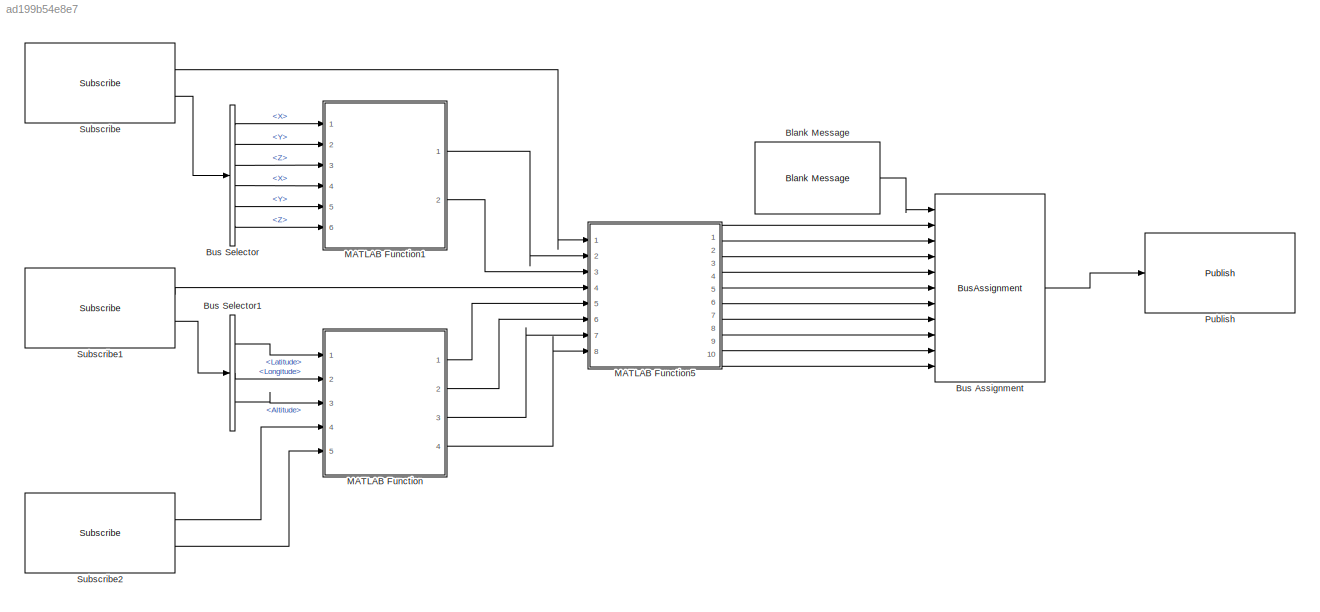
MODEL slx_ad199b54e8e7
KIND model
CONFIG AbsTol = auto
CONFIG EnableMultiTasking = off
CONFIG FixedStep = 0.01
CONFIG MaxStep = auto
CONFIG MinStep = auto
CONFIG PreLoadFcn = %% SETUP\n% Start or connect to ROS master\nrosshutdown;\nrosinit()
CONFIG RelTol = 1e-3
CONFIG SampleTimeConstraint = Unconstrained
CONFIG Solver = ode3
CONFIG SolverName = ode3
CONFIG StartTime = 0.0
CONFIG StopTime = 60.0
BLOCK [Reference] Blank Message  REF=robotlib/Blank Message
  Ports = [0, 1]
  SourceBlock = robotlib/Blank Message
  SourceProductBaseCode = RR
  SourceProductName = ROS Toolbox
  SourceType = ROS Blank Message
BLOCK [BusAssignment] Bus Assignment
  AssignedSignals = Pose.Pose.Position.X,Pose.Pose.Position.Y,Pose.Pose.Position.Z,Pose.Pose.Orientation.X,Pose.Pose.Orientation.Y,Pose.Pose.Orientation.Z,Pose.Pose.Orientation.W,Twist.Twist.Linear.X,Twist.Twist.Linear.Y,Twist.Twist.Linear.Z
  Ports = [11, 1]
BLOCK [BusSelector] Bus Selector
  OutputAsBus = off
  OutputSignals = AngularVelocity.X,AngularVelocity.Y,AngularVelocity.Z,LinearAcceleration.X,LinearAcceleration.Y,LinearAcceleration.Z
  Ports = [1, 6]
BLOCK [BusSelector] Bus Selector1
  OutputAsBus = off
  OutputSignals = Latitude,Longitude,Altitude
  Ports = [1, 3]
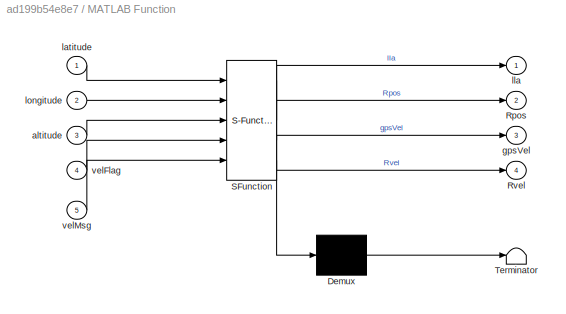
BLOCK [SubSystem] MATLAB Function
  ErrorFcn = Stateflow.Translate.translate
  PermitHierarchicalResolution = ExplicitOnly
  Ports = [5, 4]
  RequestExecContextInheritance = off
  SFBlockType = MATLAB Function
  TreatAsAtomicUnit = on
BLOCK [Demux] MATLAB Function/ Demux 
  Outputs = 1
  Ports = [1, 1]
BLOCK [S-Function] MATLAB Function/ SFunction 
  EnableBusSupport = on
  FunctionName = sf_sfun
  PortCounts = [5 5]
  Ports = [5, 5]
  SFcnIsStateOwnerBlock = off
  SFunctionDeploymentMode = off
  Tag = Stateflow S-Function 2
BLOCK [Terminator] MATLAB Function/ Terminator 
BLOCK [Outport] MATLAB Function/Rpos
  IconDisplay = Port number
  Port = 2
BLOCK [Outport] MATLAB Function/Rvel
  IconDisplay = Port number
  Port = 4
BLOCK [Inport] MATLAB Function/altitude
  IconDisplay = Port number
  Port = 3
BLOCK [Outport] MATLAB Function/gpsVel
  IconDisplay = Port number
  Port = 3
BLOCK [Inport] MATLAB Function/latitude
  IconDisplay = Port number
BLOCK [Outport] MATLAB Function/lla
  IconDisplay = Port number
BLOCK [Inport] MATLAB Function/longitude
  IconDisplay = Port number
  Port = 2
BLOCK [Inport] MATLAB Function/velFlag
  IconDisplay = Port number
  Port = 4
BLOCK [Inport] MATLAB Function/velMsg
  IconDisplay = Port number
  Port = 5
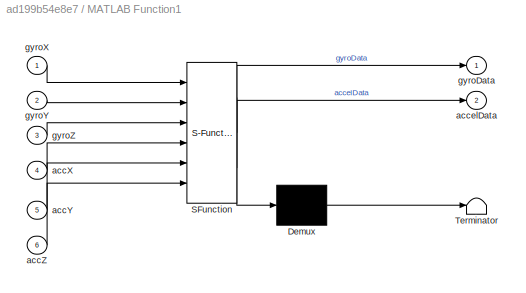
BLOCK [SubSystem] MATLAB Function1
  ErrorFcn = Stateflow.Translate.translate
  PermitHierarchicalResolution = ExplicitOnly
  Ports = [6, 2]
  RequestExecContextInheritance = off
  SFBlockType = MATLAB Function
  TreatAsAtomicUnit = on
BLOCK [Demux] MATLAB Function1/ Demux 
  Outputs = 1
  Ports = [1, 1]
BLOCK [S-Function] MATLAB Function1/ SFunction 
  EnableBusSupport = on
  FunctionName = sf_sfun
  PortCounts = [6 3]
  Ports = [6, 3]
  SFcnIsStateOwnerBlock = off
  SFunctionDeploymentMode = off
  Tag = Stateflow S-Function 1
BLOCK [Terminator] MATLAB Function1/ Terminator 
BLOCK [Inport] MATLAB Function1/accX
  IconDisplay = Port number
  Port = 4
BLOCK [Inport] MATLAB Function1/accY
  IconDisplay = Port number
  Port = 5
BLOCK [Inport] MATLAB Function1/accZ
  IconDisplay = Port number
  Port = 6
BLOCK [Outport] MATLAB Function1/accelData
  IconDisplay = Port number
  Port = 2
BLOCK [Outport] MATLAB Function1/gyroData
  IconDisplay = Port number
BLOCK [Inport] MATLAB Function1/gyroX
  IconDisplay = Port number
BLOCK [Inport] MATLAB Function1/gyroY
  IconDisplay = Port number
  Port = 2
BLOCK [Inport] MATLAB Function1/gyroZ
  IconDisplay = Port number
  Port = 3
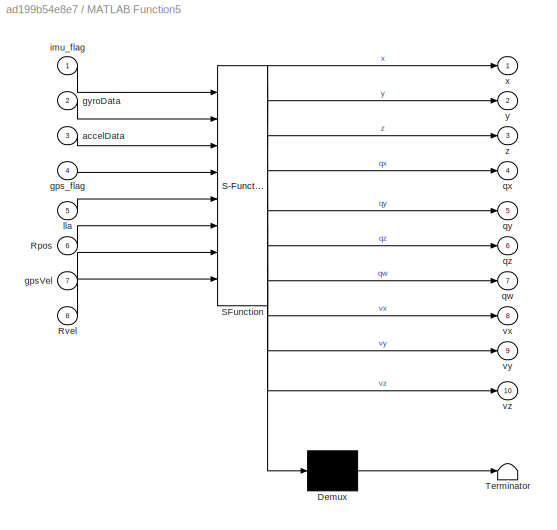
BLOCK [SubSystem] MATLAB Function5
  ErrorFcn = Stateflow.Translate.translate
  PermitHierarchicalResolution = ExplicitOnly
  Ports = [8, 10]
  RequestExecContextInheritance = off
  SFBlockType = MATLAB Function
  TreatAsAtomicUnit = on
BLOCK [Demux] MATLAB Function5/ Demux 
  Outputs = 1
  Ports = [1, 1]
BLOCK [S-Function] MATLAB Function5/ SFunction 
  EnableBusSupport = on
  FunctionName = sf_sfun
  PortCounts = [8 11]
  Ports = [8, 11]
  SFcnIsStateOwnerBlock = off
  SFunctionDeploymentMode = off
  Tag = Stateflow S-Function 6
BLOCK [Terminator] MATLAB Function5/ Terminator 
BLOCK [Inport] MATLAB Function5/Rpos
  IconDisplay = Port number
  Port = 6
BLOCK [Inport] MATLAB Function5/Rvel
  IconDisplay = Port number
  Port = 8
BLOCK [Inport] MATLAB Function5/accelData
  IconDisplay = Port number
  Port = 3
BLOCK [Inport] MATLAB Function5/gpsVel
  IconDisplay = Port number
  Port = 7
BLOCK [Inport] MATLAB Function5/gps_flag
  IconDisplay = Port number
  Port = 4
BLOCK [Inport] MATLAB Function5/gyroData
  IconDisplay = Port number
  Port = 2
BLOCK [Inport] MATLAB Function5/imu_flag
  IconDisplay = Port number
BLOCK [Inport] MATLAB Function5/lla
  IconDisplay = Port number
  Port = 5
BLOCK [Outport] MATLAB Function5/qw
  IconDisplay = Port number
  Port = 7
BLOCK [Outport] MATLAB Function5/qx
  IconDisplay = Port number
  Port = 4
BLOCK [Outport] MATLAB Function5/qy
  IconDisplay = Port number
  Port = 5
BLOCK [Outport] MATLAB Function5/qz
  IconDisplay = Port number
  Port = 6
BLOCK [Outport] MATLAB Function5/vx
  IconDisplay = Port number
  Port = 8
BLOCK [Outport] MATLAB Function5/vy
  IconDisplay = Port number
  Port = 9
BLOCK [Outport] MATLAB Function5/vz
  IconDisplay = Port number
  Port = 10
BLOCK [Outport] MATLAB Function5/x
  IconDisplay = Port number
BLOCK [Outport] MATLAB Function5/y
  IconDisplay = Port number
  Port = 2
BLOCK [Outport] MATLAB Function5/z
  IconDisplay = Port number
  Port = 3
BLOCK [Reference] Publish  REF=robotlib/Publish
  Ports = [1]
  SourceBlock = robotlib/Publish
  SourceProductBaseCode = RR
  SourceProductName = ROS Toolbox
  SourceType = ROS Publish
BLOCK [Reference] Subscribe  REF=robotlib/Subscribe
  Ports = [0, 2]
  SourceBlock = robotlib/Subscribe
  SourceProductBaseCode = RR
  SourceProductName = ROS Toolbox
  SourceType = ROS Subscribe
BLOCK [Reference] Subscribe1  REF=robotlib/Subscribe
  Ports = [0, 2]
  SourceBlock = robotlib/Subscribe
  SourceProductBaseCode = RR
  SourceProductName = ROS Toolbox
  SourceType = ROS Subscribe
BLOCK [Reference] Subscribe2  REF=robotlib/Subscribe
  Ports = [0, 2]
  SourceBlock = robotlib/Subscribe
  SourceProductBaseCode = RR
  SourceProductName = ROS Toolbox
  SourceType = ROS Subscribe
LINE Blank Message:1 -> Bus Assignment:1
LINE Bus Assignment:1 -> Publish:1
LINE Bus Selector1:1 -> MATLAB Function:1
LINE Bus Selector1:2 -> MATLAB Function:2
LINE Bus Selector1:3 -> MATLAB Function:3
LINE Bus Selector:1 -> MATLAB Function1:1
LINE Bus Selector:2 -> MATLAB Function1:2
LINE Bus Selector:3 -> MATLAB Function1:3
LINE Bus Selector:4 -> MATLAB Function1:4
LINE Bus Selector:5 -> MATLAB Function1:5
LINE Bus Selector:6 -> MATLAB Function1:6
LINE MATLAB Function1:1 -> MATLAB Function5:2
LINE MATLAB Function1:2 -> MATLAB Function5:3
LINE MATLAB Function5:1 -> Bus Assignment:2
LINE MATLAB Function5:10 -> Bus Assignment:11
LINE MATLAB Function5:2 -> Bus Assignment:3
LINE MATLAB Function5:3 -> Bus Assignment:4
LINE MATLAB Function5:4 -> Bus Assignment:5
LINE MATLAB Function5:5 -> Bus Assignment:6
LINE MATLAB Function5:6 -> Bus Assignment:7
LINE MATLAB Function5:7 -> Bus Assignment:8
LINE MATLAB Function5:8 -> Bus Assignment:9
LINE MATLAB Function5:9 -> Bus Assignment:10
LINE MATLAB Function:1 -> MATLAB Function5:5
LINE MATLAB Function:2 -> MATLAB Function5:6
LINE MATLAB Function:3 -> MATLAB Function5:7
LINE MATLAB Function:4 -> MATLAB Function5:8
LINE Subscribe1:1 -> MATLAB Function5:4
LINE Subscribe1:2 -> Bus Selector1:1
LINE Subscribe2:1 -> MATLAB Function:4
LINE Subscribe2:2 -> MATLAB Function:5
LINE Subscribe:1 -> MATLAB Function5:1
LINE Subscribe:2 -> Bus Selector:1
CHART MATLAB Function1 states=1 transitions=1
  STATE_LABEL 'eML_blk_kernel()'
  STATE_LABEL 'SCRIPT:\nfunction [gyroData, accelData]= imuData(gyroX,gyroY,gyroZ,accX,accY,accZ)\n    gyroData = [gyroX,gyroY,gyroZ];\n    accelData = [accX,accY,-accZ];\nend'
CHART MATLAB Function states=1 transitions=1
  STATE_LABEL 'eML_blk_kernel()'
  STATE_LABEL 'SCRIPT:\nfunction [lla, Rpos, gpsVel, Rvel] = gpsData(latitude, longitude, altitude, velFlag, velMsg)\n\n    persistent robotVel\n    if isempty(robotVel)\n        robotVel = [0,0,0];\n    end\n    if(velFlag)\n        robotVel = [velMsg.Vector_.X,velMsg.Vector_.Y,velMsg.Vector_.Z];\n    end\n    % Assemble GPS data in array\n    lla = [latitude,longitude,altitude];\n    gpsVel = robotVel;\n    % Measurement n...<+40ch>'
CHART MATLAB Function5 states=1 transitions=1
  STATE_LABEL 'eML_blk_kernel()'
  STATE_LABEL "SCRIPT:\nfunction [x,y,z,qx,qy,qz,qw,vx,vy,vz]= fuseIMUGPS(imu_flag, gyroData, accelData, gps_flag, lla, Rpos, gpsVel, Rvel)\n    persistent gndFusion\n    if isempty(gndFusion)\n        imuFs = 50;\n        localOrigin = [18.954817 72.811367 0];\n\n        gndFusion = insfilterNonholonomic('ReferenceFrame', 'ENU', ...\n            'IMUSampleRate', imuFs, ...\n            'ReferenceLocation', localOrigin, ...<+1123ch>"
